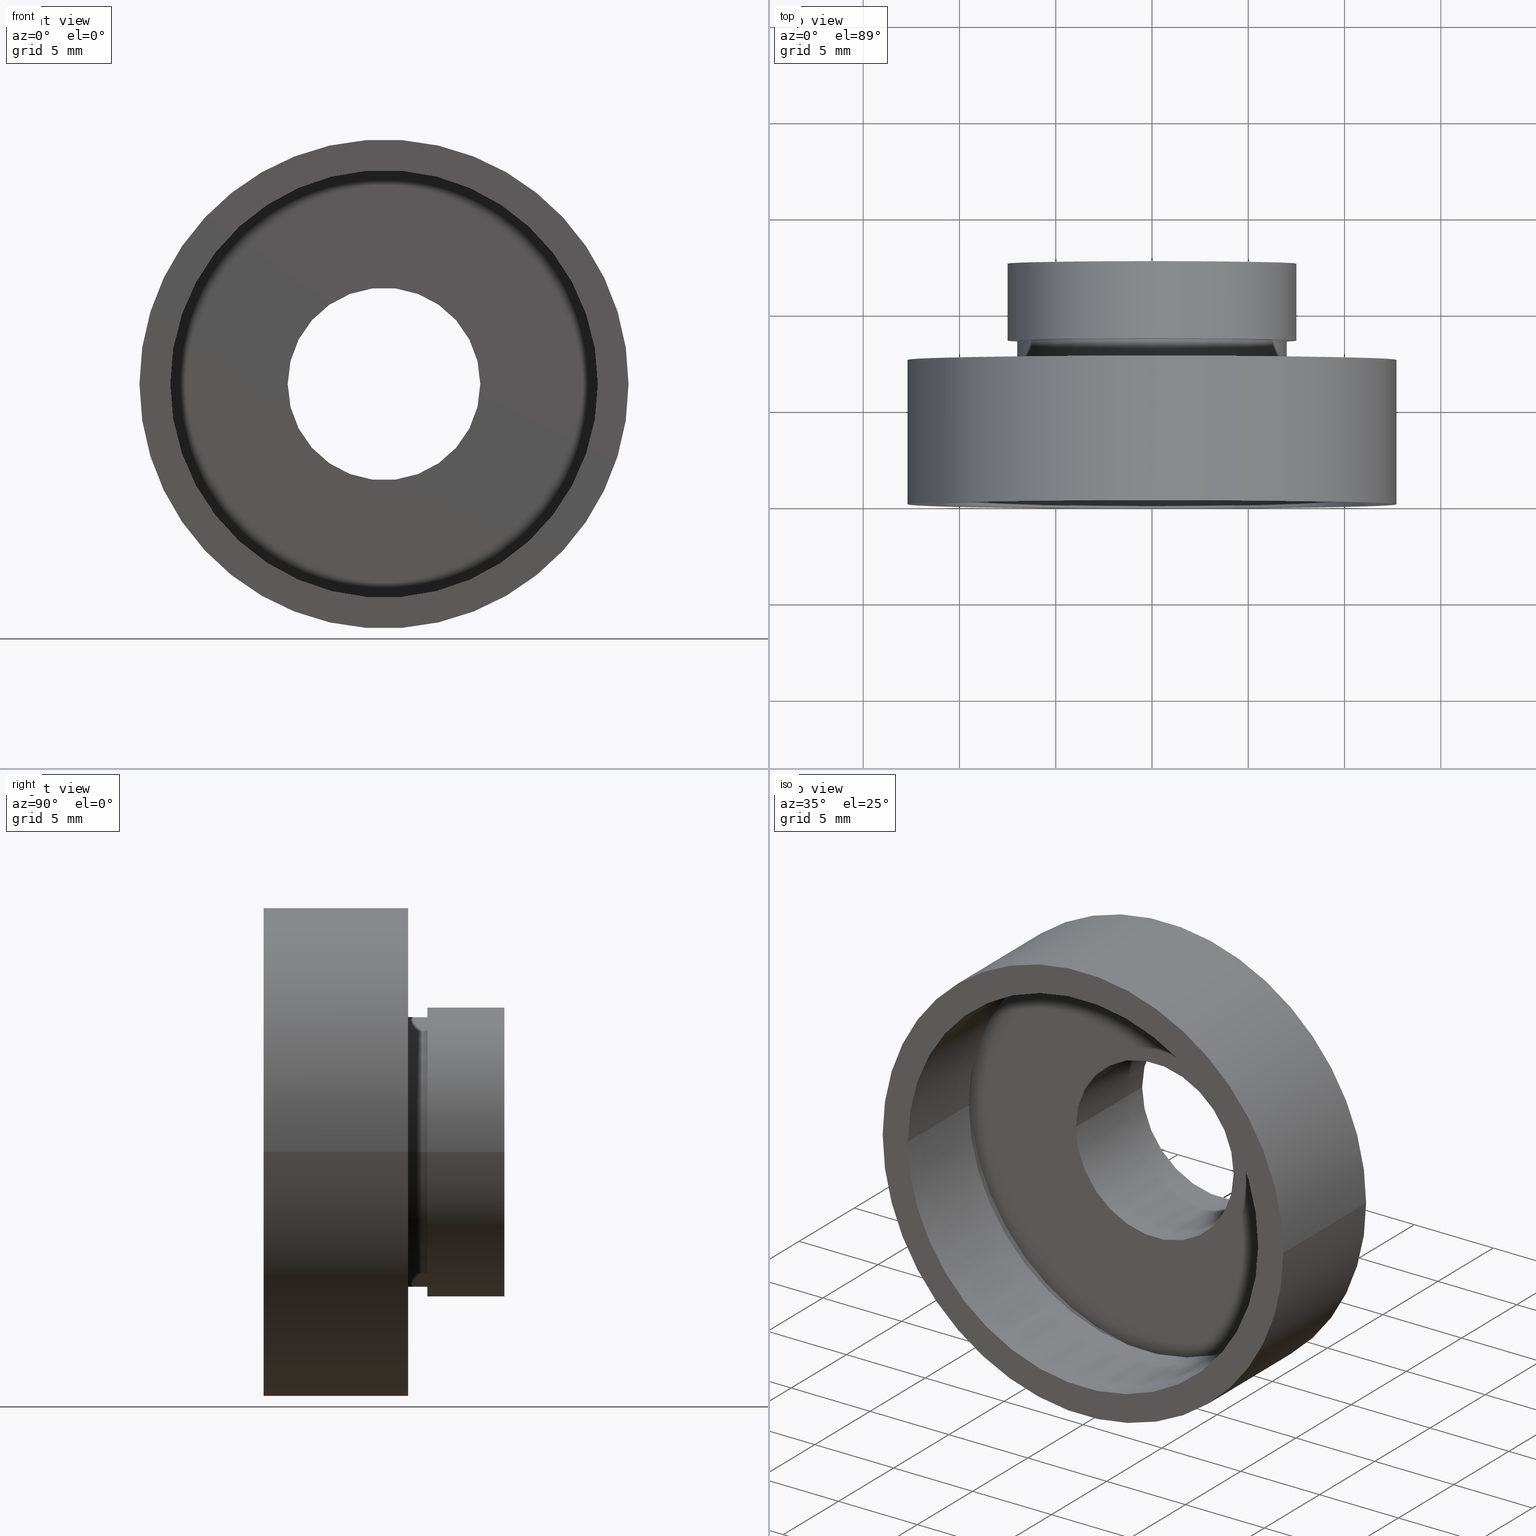
[diagram: canonical four-view strip — front | top / right | iso, engineering-drawing reading convention]
A machine part, canonical four-view strip (front | top / right | iso — engineering-drawing reading convention). The complete STEP part file that produces these views, byte-faithful:
ISO-10303-21;
HEADER;
FILE_DESCRIPTION (( 'STEP AP214' ),
    '1' );
FILE_NAME ('504088.STEP',
    '2019-10-08T08:06:31',
    ( 'user' ),
    ( '΢���й�' ),
    'SwSTEP 2.0',
    'SolidWorks 2016',
    '' );
FILE_SCHEMA (( 'AUTOMOTIVE_DESIGN' ));
ENDSEC;

DATA;
#1 = PRESENTATION_STYLE_ASSIGNMENT (( #459 ) ) ;
#2 = ORIENTED_EDGE ( 'NONE', *, *, #364, .T. ) ;
#3 = DIRECTION ( 'NONE',  ( -1.000000000000000000, -1.365923996832131900E-016, 0.0000000000000000000 ) ) ;
#4 = STYLED_ITEM ( 'NONE', ( #567 ), #190 ) ;
#5 = DIRECTION ( 'NONE',  ( -1.000000000000000000, 0.0000000000000000000, 0.0000000000000000000 ) ) ;
#6 = PRODUCT ( '504088', '504088', '', ( #550 ) ) ;
#7 = AXIS2_PLACEMENT_3D ( 'NONE', #496, #148, #584 ) ;
#8 = SURFACE_STYLE_FILL_AREA ( #345 ) ;
#9 = DIRECTION ( 'NONE',  ( -1.000000000000000000, -2.312964634635743000E-016, 0.0000000000000000000 ) ) ;
#10 = CARTESIAN_POINT ( 'NONE',  ( 1.026991039163387700E-015, 8.499999999999998200, 0.0000000000000000000 ) ) ;
#11 = ADVANCED_FACE ( 'NONE', ( #411 ), #602, .F. ) ;
#12 =( GEOMETRIC_REPRESENTATION_CONTEXT ( 3 ) GLOBAL_UNCERTAINTY_ASSIGNED_CONTEXT ( ( #586 ) ) GLOBAL_UNIT_ASSIGNED_CONTEXT ( ( #436, #320, #198 ) ) REPRESENTATION_CONTEXT ( 'NONE', 'WORKASPACE' ) );
#13 =( LENGTH_UNIT ( ) NAMED_UNIT ( * ) SI_UNIT ( .MILLI., .METRE. ) );
#14 = FACE_OUTER_BOUND ( 'NONE', #283, .T. ) ;
#15 = ADVANCED_FACE ( 'NONE', ( #621 ), #67, .T. ) ;
#16 = DIRECTION ( 'NONE',  ( -1.000000000000000000, -1.365923996832131900E-016, 0.0000000000000000000 ) ) ;
#17 = DIRECTION ( 'NONE',  ( -1.224646799147351000E-016, 1.000000000000000000, -0.0000000000000000000 ) ) ;
#18 = UNCERTAINTY_MEASURE_WITH_UNIT (LENGTH_MEASURE( 1.000000000000000100E-005 ), #499, 'distance_accuracy_value', 'NONE');
#19 = PRODUCT_DEFINITION_FORMATION_WITH_SPECIFIED_SOURCE ( '�κ�', '', #6, .NOT_KNOWN. ) ;
#20 = ORIENTED_EDGE ( 'NONE', *, *, #594, .F. ) ;
#21 = VECTOR ( 'NONE', #497, 1000.000000000000000 ) ;
#22 = AXIS2_PLACEMENT_3D ( 'NONE', #533, #590, #292 ) ;
#23 = DIRECTION ( 'NONE',  ( -1.224646799147351000E-016, 1.000000000000000000, 0.0000000000000000000 ) ) ;
#24 = ADVANCED_FACE ( 'NONE', ( #512 ), #302, .F. ) ;
#25 = PLANE ( 'NONE',  #171 ) ;
#26 = EDGE_LOOP ( 'NONE', ( #48, #78 ) ) ;
#27 = ORIENTED_EDGE ( 'NONE', *, *, #395, .T. ) ;
#28 = LINE ( 'NONE', #529, #162 ) ;
#29 = SURFACE_SIDE_STYLE ('',( #610 ) ) ;
#30 = ORIENTED_EDGE ( 'NONE', *, *, #561, .T. ) ;
#31 = CARTESIAN_POINT ( 'NONE',  ( 1.394385078907593200E-015, 5.499999999999996400, 0.0000000000000000000 ) ) ;
#32 = ORIENTED_EDGE ( 'NONE', *, *, #130, .F. ) ;
#33 = AXIS2_PLACEMENT_3D ( 'NONE', #114, #297, #69 ) ;
#34 = ORIENTED_EDGE ( 'NONE', *, *, #553, .T. ) ;
#35 = VECTOR ( 'NONE', #174, 1000.000000000000000 ) ;
#36 =( GEOMETRIC_REPRESENTATION_CONTEXT ( 3 ) GLOBAL_UNCERTAINTY_ASSIGNED_CONTEXT ( ( #427 ) ) GLOBAL_UNIT_ASSIGNED_CONTEXT ( ( #87, #615, #261 ) ) REPRESENTATION_CONTEXT ( 'NONE', 'WORKASPACE' ) );
#37 = SURFACE_STYLE_USAGE ( .BOTH. , #29 ) ;
#38 = VECTOR ( 'NONE', #501, 1000.000000000000000 ) ;
#39 = EDGE_LOOP ( 'NONE', ( #66, #249 ) ) ;
#40 = ORIENTED_EDGE ( 'NONE', *, *, #592, .F. ) ;
#41 = PLANE ( 'NONE',  #222 ) ;
#42 = ORIENTED_EDGE ( 'NONE', *, *, #574, .T. ) ;
#43 = CARTESIAN_POINT ( 'NONE',  ( 5.000000000000000900, 16.88601823708207700, 6.123233995736767300E-016 ) ) ;
#44 = PRESENTATION_LAYER_ASSIGNMENT (  '', '', ( #71 ) ) ;
#45 = CARTESIAN_POINT ( 'NONE',  ( 2.067940818438636100E-015, 0.0000000000000000000, 0.0000000000000000000 ) ) ;
#46 = DIRECTION ( 'NONE',  ( -1.224646799147351000E-016, 1.000000000000000000, -0.0000000000000000000 ) ) ;
#47 = CARTESIAN_POINT ( 'NONE',  ( 1.394385078907593200E-015, 5.499999999999996400, 0.0000000000000000000 ) ) ;
#48 = ORIENTED_EDGE ( 'NONE', *, *, #187, .T. ) ;
#49 = DIRECTION ( 'NONE',  ( 1.224646799147351000E-016, -1.000000000000000000, 0.0000000000000000000 ) ) ;
#50 = ORIENTED_EDGE ( 'NONE', *, *, #59, .T. ) ;
#51 = CARTESIAN_POINT ( 'NONE',  ( 5.000000000000001800, 6.500000000000000000, 6.123233995736767300E-016 ) ) ;
#52 = PRODUCT_DEFINITION ( 'δ֪', '', #19, #421 ) ;
#53 = CIRCLE ( 'NONE', #141, 7.500000000000000000 ) ;
#54 = FILL_AREA_STYLE ('',( #201 ) ) ;
#55 = DIRECTION ( 'NONE',  ( -1.000000000000000000, -1.482669637587014800E-016, 0.0000000000000000000 ) ) ;
#56 = CARTESIAN_POINT ( 'NONE',  ( -5.000000000000000000, 12.50000000000000000, 0.0000000000000000000 ) ) ;
#57 = CYLINDRICAL_SURFACE ( 'NONE', #415, 11.69999999999999900 ) ;
#58 = DIRECTION ( 'NONE',  ( -1.000000000000000000, -2.312964634635743000E-016, 0.0000000000000000000 ) ) ;
#59 = EDGE_CURVE ( 'NONE', #60, #207, #167, .T. ) ;
#60 = VERTEX_POINT ( 'NONE', #355 ) ;
#61 = EDGE_LOOP ( 'NONE', ( #243, #248, #272, #309 ) ) ;
#62 = AXIS2_PLACEMENT_3D ( 'NONE', #518, #226, #333 ) ;
#63 = MECHANICAL_DESIGN_GEOMETRIC_PRESENTATION_REPRESENTATION (  '', ( #4 ), #12 ) ;
#64 = DIRECTION ( 'NONE',  ( -1.000000000000000000, 0.0000000000000000000, 0.0000000000000000000 ) ) ;
#65 = UNCERTAINTY_MEASURE_WITH_UNIT (LENGTH_MEASURE( 1.000000000000000100E-005 ), #443, 'distance_accuracy_value', 'NONE');
#66 = ORIENTED_EDGE ( 'NONE', *, *, #456, .F. ) ;
#67 = CYLINDRICAL_SURFACE ( 'NONE', #347, 7.500000000000000000 ) ;
#68 = CARTESIAN_POINT ( 'NONE',  ( 11.70000000000000100, 5.499999999999998200, 1.432836755002403100E-015 ) ) ;
#69 = DIRECTION ( 'NONE',  ( -1.000000000000000000, -1.239088197126290800E-016, 0.0000000000000000000 ) ) ;
#70 = FILL_AREA_STYLE_COLOUR ( '', #338 ) ;
#71 = STYLED_ITEM ( 'NONE', ( #439 ), #274 ) ;
#72 = CARTESIAN_POINT ( 'NONE',  ( 11.10000000000000000, 16.88601823708207700, 1.359357947053562200E-015 ) ) ;
#73 = CARTESIAN_POINT ( 'NONE',  ( 7.500000000000000000, 16.88601823708207700, 9.184850993605147900E-016 ) ) ;
#74 = SURFACE_SIDE_STYLE ('',( #133 ) ) ;
#75 = CARTESIAN_POINT ( 'NONE',  ( -6.999999999999999100, 8.500000000000000000, 0.0000000000000000000 ) ) ;
#76 = DIRECTION ( 'NONE',  ( -1.224646799147351000E-016, 1.000000000000000000, -0.0000000000000000000 ) ) ;
#77 = ORIENTED_EDGE ( 'NONE', *, *, #569, .F. ) ;
#78 = ORIENTED_EDGE ( 'NONE', *, *, #623, .T. ) ;
#79 = ORIENTED_EDGE ( 'NONE', *, *, #612, .T. ) ;
#80 = ORIENTED_EDGE ( 'NONE', *, *, #127, .T. ) ;
#81 = SURFACE_SIDE_STYLE ('',( #408 ) ) ;
#82 = CARTESIAN_POINT ( 'NONE',  ( 7.500000000000000900, 12.49999999999999800, 9.184850993605147900E-016 ) ) ;
#83 =( GEOMETRIC_REPRESENTATION_CONTEXT ( 3 ) GLOBAL_UNCERTAINTY_ASSIGNED_CONTEXT ( ( #65 ) ) GLOBAL_UNIT_ASSIGNED_CONTEXT ( ( #443, #387, #344 ) ) REPRESENTATION_CONTEXT ( 'NONE', 'WORKASPACE' ) );
#84 = ORIENTED_EDGE ( 'NONE', *, *, #234, .F. ) ;
#85 = ORIENTED_EDGE ( 'NONE', *, *, #605, .T. ) ;
#86 = CIRCLE ( 'NONE', #377, 12.69999999999999800 ) ;
#87 =( LENGTH_UNIT ( ) NAMED_UNIT ( * ) SI_UNIT ( .MILLI., .METRE. ) );
#88 = PRESENTATION_LAYER_ASSIGNMENT (  '', '', ( #146 ) ) ;
#89 = PRESENTATION_STYLE_ASSIGNMENT (( #105 ) ) ;
#90 = DIRECTION ( 'NONE',  ( -1.224646799147351000E-016, 1.000000000000000000, -0.0000000000000000000 ) ) ;
#91 = EDGE_LOOP ( 'NONE', ( #135, #40 ) ) ;
#92 = DIRECTION ( 'NONE',  ( -1.224646799147351000E-016, 1.000000000000000000, -0.0000000000000000000 ) ) ;
#93 = EDGE_CURVE ( 'NONE', #327, #435, #160, .T. ) ;
#94 = EDGE_LOOP ( 'NONE', ( #84, #454, #80, #445 ) ) ;
#95 = CARTESIAN_POINT ( 'NONE',  ( 7.500000000000000900, 8.500000000000000000, 0.0000000000000000000 ) ) ;
#96 = DIRECTION ( 'NONE',  ( 1.224646799147351000E-016, -1.000000000000000000, 0.0000000000000000000 ) ) ;
#97 = DIRECTION ( 'NONE',  ( -1.224646799147351000E-016, 1.000000000000000000, -0.0000000000000000000 ) ) ;
#98 = FILL_AREA_STYLE_COLOUR ( '', #238 ) ;
#99 = LINE ( 'NONE', #468, #537 ) ;
#100 = CARTESIAN_POINT ( 'NONE',  ( 1.026991039163387500E-015, 8.500000000000000000, 0.0000000000000000000 ) ) ;
#101 = FACE_OUTER_BOUND ( 'NONE', #287, .T. ) ;
#102 = MECHANICAL_DESIGN_GEOMETRIC_PRESENTATION_REPRESENTATION (  '', ( #146 ), #36 ) ;
#103 = CARTESIAN_POINT ( 'NONE',  ( 7.500000000000000900, 8.500000000000000000, 9.184850993605147900E-016 ) ) ;
#104 = CYLINDRICAL_SURFACE ( 'NONE', #230, 5.000000000000000900 ) ;
#105 = SURFACE_STYLE_USAGE ( .BOTH. , #452 ) ;
#106 = CIRCLE ( 'NONE', #62, 11.69999999999999900 ) ;
#107 = CARTESIAN_POINT ( 'NONE',  ( -11.69999999999999800, 5.499999999999994700, 0.0000000000000000000 ) ) ;
#108 =( NAMED_UNIT ( * ) PLANE_ANGLE_UNIT ( ) SI_UNIT ( $, .RADIAN. ) );
#109 = AXIS2_PLACEMENT_3D ( 'NONE', #526, #303, #271 ) ;
#110 = DIRECTION ( 'NONE',  ( 1.000000000000000000, 1.224646799147351000E-016, 0.0000000000000000000 ) ) ;
#111 = EDGE_LOOP ( 'NONE', ( #214, #322 ) ) ;
#112 = CARTESIAN_POINT ( 'NONE',  ( 5.371323195044471300E-016, 12.50000000000000000, 0.0000000000000000000 ) ) ;
#113 = EDGE_LOOP ( 'NONE', ( #142, #453, #121, #233 ) ) ;
#114 = CARTESIAN_POINT ( 'NONE',  ( 1.149455719078122500E-015, 7.500000000000000000, 0.0000000000000000000 ) ) ;
#115 = ORIENTED_EDGE ( 'NONE', *, *, #210, .F. ) ;
#116 = AXIS2_PLACEMENT_3D ( 'NONE', #558, #600, #464 ) ;
#117 = FACE_BOUND ( 'NONE', #310, .T. ) ;
#118 = CYLINDRICAL_SURFACE ( 'NONE', #548, 12.69999999999999900 ) ;
#119 = DIRECTION ( 'NONE',  ( 1.000000000000000000, 1.224646799147351000E-016, 0.0000000000000000000 ) ) ;
#120 = PRESENTATION_LAYER_ASSIGNMENT (  '', '', ( #509 ) ) ;
#121 = ORIENTED_EDGE ( 'NONE', *, *, #307, .T. ) ;
#122 = DIRECTION ( 'NONE',  ( -1.224646799147351000E-016, 1.000000000000000000, -0.0000000000000000000 ) ) ;
#123 = CARTESIAN_POINT ( 'NONE',  ( 7.000000000000000900, 7.500000000000000000, 0.0000000000000000000 ) ) ;
#124 = DIRECTION ( 'NONE',  ( -1.000000000000000000, -1.482669637587014800E-016, 0.0000000000000000000 ) ) ;
#125 = PRESENTATION_STYLE_ASSIGNMENT (( #242 ) ) ;
#126 = VERTEX_POINT ( 'NONE', #613 ) ;
#127 = EDGE_CURVE ( 'NONE', #280, #350, #136, .T. ) ;
#128 = CARTESIAN_POINT ( 'NONE',  ( 11.10000000000000100, 1.359357947053559600E-015, 1.359357947053562200E-015 ) ) ;
#129 = PRESENTATION_STYLE_ASSIGNMENT (( #37 ) ) ;
#130 = EDGE_CURVE ( 'NONE', #240, #326, #273, .T. ) ;
#131 = DIRECTION ( 'NONE',  ( -1.000000000000000000, -1.224646799147351000E-016, 0.0000000000000000000 ) ) ;
#132 =( NAMED_UNIT ( * ) PLANE_ANGLE_UNIT ( ) SI_UNIT ( $, .RADIAN. ) );
#133 = SURFACE_STYLE_FILL_AREA ( #245 ) ;
#134 = CARTESIAN_POINT ( 'NONE',  ( 7.000000000000000900, 7.500000000000000900, 8.572527594031473200E-016 ) ) ;
#135 = ORIENTED_EDGE ( 'NONE', *, *, #612, .F. ) ;
#136 = LINE ( 'NONE', #263, #513 ) ;
#137 = CIRCLE ( 'NONE', #22, 12.70000000000000100 ) ;
#138 = DIRECTION ( 'NONE',  ( -1.224646799147351000E-016, 1.000000000000000000, 0.0000000000000000000 ) ) ;
#139 = UNCERTAINTY_MEASURE_WITH_UNIT (LENGTH_MEASURE( 1.000000000000000100E-005 ), #524, 'distance_accuracy_value', 'NONE');
#140 = DIRECTION ( 'NONE',  ( -1.000000000000000000, -2.312964634635743000E-016, 0.0000000000000000000 ) ) ;
#141 = AXIS2_PLACEMENT_3D ( 'NONE', #288, #259, #140 ) ;
#142 = ORIENTED_EDGE ( 'NONE', *, *, #551, .F. ) ;
#143 = DIRECTION ( 'NONE',  ( -1.000000000000000000, -1.482669637587014800E-016, 0.0000000000000000000 ) ) ;
#144 = CARTESIAN_POINT ( 'NONE',  ( 7.000000000000000000, 16.88601823708207700, 8.572527594031473200E-016 ) ) ;
#145 = CARTESIAN_POINT ( 'NONE',  ( 11.10000000000000100, 5.499999999999999100, 0.0000000000000000000 ) ) ;
#146 = STYLED_ITEM ( 'NONE', ( #389 ), #544 ) ;
#147 = DIRECTION ( 'NONE',  ( -1.224646799147351000E-016, 1.000000000000000000, -0.0000000000000000000 ) ) ;
#148 = DIRECTION ( 'NONE',  ( -1.224646799147351000E-016, 1.000000000000000000, -0.0000000000000000000 ) ) ;
#149 = COLOUR_RGB ( '',1.000000000000000000, 1.000000000000000000, 1.000000000000000000 ) ;
#150 = CARTESIAN_POINT ( 'NONE',  ( -12.69999999999999900, -1.555301434917135900E-015, 0.0000000000000000000 ) ) ;
#151 = EDGE_CURVE ( 'NONE', #202, #191, #503, .T. ) ;
#152 = DIRECTION ( 'NONE',  ( -1.224646799147351000E-016, 1.000000000000000000, -0.0000000000000000000 ) ) ;
#153 = CARTESIAN_POINT ( 'NONE',  ( 7.000000000000000900, 8.500000000000000000, 8.572527594031473200E-016 ) ) ;
#154 = CARTESIAN_POINT ( 'NONE',  ( -5.000000000000000900, 16.88601823708207700, 0.0000000000000000000 ) ) ;
#155 = FACE_OUTER_BOUND ( 'NONE', #231, .T. ) ;
#156 =( NAMED_UNIT ( * ) SI_UNIT ( $, .STERADIAN. ) SOLID_ANGLE_UNIT ( ) );
#157 = SURFACE_STYLE_USAGE ( .BOTH. , #624 ) ;
#158 = ORIENTED_EDGE ( 'NONE', *, *, #539, .T. ) ;
#159 = AXIS2_PLACEMENT_3D ( 'NONE', #289, #317, #419 ) ;
#160 = CIRCLE ( 'NONE', #465, 12.70000000000000100 ) ;
#161 = EDGE_LOOP ( 'NONE', ( #328, #348, #241, #374 ) ) ;
#162 = VECTOR ( 'NONE', #446, 1000.000000000000000 ) ;
#163 = FACE_OUTER_BOUND ( 'NONE', #334, .T. ) ;
#164 = ADVANCED_FACE ( 'NONE', ( #515, #500 ), #351, .F. ) ;
#165 = DIRECTION ( 'NONE',  ( -1.224646799147351000E-016, 1.000000000000000000, -0.0000000000000000000 ) ) ;
#166 = STYLED_ITEM ( 'NONE', ( #125 ), #11 ) ;
#167 = CIRCLE ( 'NONE', #396, 11.69999999999999900 ) ;
#168 = ORIENTED_EDGE ( 'NONE', *, *, #599, .T. ) ;
#169 = DIRECTION ( 'NONE',  ( -1.000000000000000000, -1.239088197126290800E-016, 0.0000000000000000000 ) ) ;
#170 = FACE_OUTER_BOUND ( 'NONE', #294, .T. ) ;
#171 = AXIS2_PLACEMENT_3D ( 'NONE', #219, #268, #493 ) ;
#172 = CLOSED_SHELL ( 'NONE', ( #492, #572, #15, #598, #217, #274, #414, #517, #239, #24, #463, #11, #614, #576, #311, #227, #164, #400 ) ) ;
#173 = ORIENTED_EDGE ( 'NONE', *, *, #594, .T. ) ;
#174 = DIRECTION ( 'NONE',  ( -1.224646799147351000E-016, 1.000000000000000000, -0.0000000000000000000 ) ) ;
#175 = EDGE_CURVE ( 'NONE', #536, #240, #99, .T. ) ;
#176 = CARTESIAN_POINT ( 'NONE',  ( 0.0000000000000000000, 16.88601823708207700, 0.0000000000000000000 ) ) ;
#177 = COLOUR_RGB ( '',1.000000000000000000, 1.000000000000000000, 1.000000000000000000 ) ;
#178 = DIRECTION ( 'NONE',  ( -1.000000000000000000, 0.0000000000000000000, 0.0000000000000000000 ) ) ;
#179 = DIRECTION ( 'NONE',  ( -1.224646799147351000E-016, 1.000000000000000000, -0.0000000000000000000 ) ) ;
#180 = CARTESIAN_POINT ( 'NONE',  ( -7.499999999999999100, 8.499999999999996400, 0.0000000000000000000 ) ) ;
#181 = FILL_AREA_STYLE_COLOUR ( '', #177 ) ;
#182 =( GEOMETRIC_REPRESENTATION_CONTEXT ( 3 ) GLOBAL_UNCERTAINTY_ASSIGNED_CONTEXT ( ( #18 ) ) GLOBAL_UNIT_ASSIGNED_CONTEXT ( ( #499, #132, #156 ) ) REPRESENTATION_CONTEXT ( 'NONE', 'WORKASPACE' ) );
#183 = FILL_AREA_STYLE_COLOUR ( '', #528 ) ;
#184 = ORIENTED_EDGE ( 'NONE', *, *, #93, .F. ) ;
#185 = VERTEX_POINT ( 'NONE', #51 ) ;
#186 = VERTEX_POINT ( 'NONE', #56 ) ;
#187 = EDGE_CURVE ( 'NONE', #350, #525, #565, .T. ) ;
#188 = LINE ( 'NONE', #144, #369 ) ;
#189 = CARTESIAN_POINT ( 'NONE',  ( -11.09999999999999800, 5.499999999999994700, 0.0000000000000000000 ) ) ;
#190 = MANIFOLD_SOLID_BREP ( '��ת1', #172 ) ;
#191 = VERTEX_POINT ( 'NONE', #68 ) ;
#192 = DIRECTION ( 'NONE',  ( -1.224646799147351000E-016, 1.000000000000000000, -0.0000000000000000000 ) ) ;
#193 = ORIENTED_EDGE ( 'NONE', *, *, #307, .F. ) ;
#194 = FILL_AREA_STYLE_COLOUR ( '', #149 ) ;
#195 =( LENGTH_UNIT ( ) NAMED_UNIT ( * ) SI_UNIT ( .MILLI., .METRE. ) );
#196 = CIRCLE ( 'NONE', #341, 7.000000000000000000 ) ;
#197 = DIRECTION ( 'NONE',  ( -1.000000000000000000, 0.0000000000000000000, 0.0000000000000000000 ) ) ;
#198 =( NAMED_UNIT ( * ) SI_UNIT ( $, .STERADIAN. ) SOLID_ANGLE_UNIT ( ) );
#199 = PRESENTATION_LAYER_ASSIGNMENT (  '', '', ( #166 ) ) ;
#200 = VERTEX_POINT ( 'NONE', #486 ) ;
#201 = FILL_AREA_STYLE_COLOUR ( '', #583 ) ;
#202 = VERTEX_POINT ( 'NONE', #107 ) ;
#203 = DIRECTION ( 'NONE',  ( -1.000000000000000000, -2.312964634635743000E-016, 0.0000000000000000000 ) ) ;
#204 =( NAMED_UNIT ( * ) SI_UNIT ( $, .STERADIAN. ) SOLID_ANGLE_UNIT ( ) );
#205 = CARTESIAN_POINT ( 'NONE',  ( -7.500000000000000000, 16.88601823708207700, 0.0000000000000000000 ) ) ;
#206 = CARTESIAN_POINT ( 'NONE',  ( 1.149455719078122500E-015, 7.500000000000000000, 0.0000000000000000000 ) ) ;
#207 = VERTEX_POINT ( 'NONE', #469 ) ;
#208 = EDGE_LOOP ( 'NONE', ( #267, #458, #295, #441 ) ) ;
#209 = DIRECTION ( 'NONE',  ( -1.000000000000000000, 0.0000000000000000000, 0.0000000000000000000 ) ) ;
#210 = EDGE_CURVE ( 'NONE', #535, #280, #487, .T. ) ;
#211 = DIRECTION ( 'NONE',  ( -1.224646799147351000E-016, 1.000000000000000000, -0.0000000000000000000 ) ) ;
#212 = DIRECTION ( 'NONE',  ( -1.000000000000000000, 0.0000000000000000000, 0.0000000000000000000 ) ) ;
#213 = APPLICATION_PROTOCOL_DEFINITION ( 'draft international standard', 'automotive_design', 1998, #450 ) ;
#214 = ORIENTED_EDGE ( 'NONE', *, *, #59, .F. ) ;
#215 =( NAMED_UNIT ( * ) PLANE_ANGLE_UNIT ( ) SI_UNIT ( $, .RADIAN. ) );
#216 = AXIS2_PLACEMENT_3D ( 'NONE', #538, #566, #564 ) ;
#217 = ADVANCED_FACE ( 'NONE', ( #275 ), #57, .F. ) ;
#218 = EDGE_LOOP ( 'NONE', ( #388, #416, #523, #425 ) ) ;
#219 = CARTESIAN_POINT ( 'NONE',  ( 5.000000000000001800, 12.50000000000000000, 0.0000000000000000000 ) ) ;
#220 = ORIENTED_EDGE ( 'NONE', *, *, #571, .F. ) ;
#221 = VECTOR ( 'NONE', #504, 1000.000000000000000 ) ;
#222 = AXIS2_PLACEMENT_3D ( 'NONE', #145, #96, #119 ) ;
#223 = CARTESIAN_POINT ( 'NONE',  ( -11.09999999999999800, -1.359357947053559600E-015, 0.0000000000000000000 ) ) ;
#224 = DIRECTION ( 'NONE',  ( -1.000000000000000000, 0.0000000000000000000, 0.0000000000000000000 ) ) ;
#225 = EDGE_LOOP ( 'NONE', ( #77, #401, #2, #50 ) ) ;
#226 = DIRECTION ( 'NONE',  ( -1.224646799147351000E-016, 1.000000000000000000, -0.0000000000000000000 ) ) ;
#227 = ADVANCED_FACE ( 'NONE', ( #473 ), #428, .T. ) ;
#228 = CARTESIAN_POINT ( 'NONE',  ( 0.0000000000000000000, 16.88601823708207700, 0.0000000000000000000 ) ) ;
#229 = SURFACE_STYLE_FILL_AREA ( #54 ) ;
#230 = AXIS2_PLACEMENT_3D ( 'NONE', #476, #211, #224 ) ;
#231 = EDGE_LOOP ( 'NONE', ( #418, #281, #460, #193 ) ) ;
#232 = CARTESIAN_POINT ( 'NONE',  ( -12.69999999999999900, 16.88601823708207700, 0.0000000000000000000 ) ) ;
#233 = ORIENTED_EDGE ( 'NONE', *, *, #582, .F. ) ;
#234 = EDGE_CURVE ( 'NONE', #535, #525, #188, .T. ) ;
#235 = CIRCLE ( 'NONE', #216, 7.000000000000000000 ) ;
#236 = DIRECTION ( 'NONE',  ( -1.224646799147351000E-016, 1.000000000000000000, -0.0000000000000000000 ) ) ;
#237 = FACE_OUTER_BOUND ( 'NONE', #386, .T. ) ;
#238 = COLOUR_RGB ( '',1.000000000000000000, 1.000000000000000000, 1.000000000000000000 ) ;
#239 = ADVANCED_FACE ( 'NONE', ( #117, #14 ), #41, .F. ) ;
#240 = VERTEX_POINT ( 'NONE', #189 ) ;
#241 = ORIENTED_EDGE ( 'NONE', *, *, #395, .F. ) ;
#242 = SURFACE_STYLE_USAGE ( .BOTH. , #74 ) ;
#243 = ORIENTED_EDGE ( 'NONE', *, *, #611, .F. ) ;
#244 = AXIS2_PLACEMENT_3D ( 'NONE', #112, #147, #277 ) ;
#245 = FILL_AREA_STYLE ('',( #194 ) ) ;
#246 =( GEOMETRIC_REPRESENTATION_CONTEXT ( 3 ) GLOBAL_UNCERTAINTY_ASSIGNED_CONTEXT ( ( #308 ) ) GLOBAL_UNIT_ASSIGNED_CONTEXT ( ( #617, #215, #204 ) ) REPRESENTATION_CONTEXT ( 'NONE', 'WORKASPACE' ) );
#247 = ORIENTED_EDGE ( 'NONE', *, *, #372, .F. ) ;
#248 = ORIENTED_EDGE ( 'NONE', *, *, #478, .T. ) ;
#249 = ORIENTED_EDGE ( 'NONE', *, *, #574, .F. ) ;
#250 = FILL_AREA_STYLE_COLOUR ( '', #616 ) ;
#251 = CARTESIAN_POINT ( 'NONE',  ( 0.0000000000000000000, 16.88601823708207700, 0.0000000000000000000 ) ) ;
#252 = AXIS2_PLACEMENT_3D ( 'NONE', #379, #76, #530 ) ;
#253 = DIRECTION ( 'NONE',  ( -1.000000000000000000, -1.224646799147351000E-016, 0.0000000000000000000 ) ) ;
#254 = FILL_AREA_STYLE_COLOUR ( '', #494 ) ;
#255 =( NAMED_UNIT ( * ) PLANE_ANGLE_UNIT ( ) SI_UNIT ( $, .RADIAN. ) );
#256 =( NAMED_UNIT ( * ) SI_UNIT ( $, .STERADIAN. ) SOLID_ANGLE_UNIT ( ) );
#257 = APPLICATION_CONTEXT ( 'automotive_design' ) ;
#258 = EDGE_CURVE ( 'NONE', #444, #185, #430, .T. ) ;
#259 = DIRECTION ( 'NONE',  ( -1.224646799147351000E-016, 1.000000000000000000, -0.0000000000000000000 ) ) ;
#260 = CARTESIAN_POINT ( 'NONE',  ( 11.10000000000000100, 5.499999999999998200, 1.359357947053562200E-015 ) ) ;
#261 =( NAMED_UNIT ( * ) SI_UNIT ( $, .STERADIAN. ) SOLID_ANGLE_UNIT ( ) );
#262 = UNCERTAINTY_MEASURE_WITH_UNIT (LENGTH_MEASURE( 1.000000000000000100E-005 ), #13, 'distance_accuracy_value', 'NONE');
#263 = CARTESIAN_POINT ( 'NONE',  ( -7.000000000000000000, 16.88601823708207700, 0.0000000000000000000 ) ) ;
#264 =( NAMED_UNIT ( * ) SI_UNIT ( $, .STERADIAN. ) SOLID_ANGLE_UNIT ( ) );
#265 = AXIS2_PLACEMENT_3D ( 'NONE', #438, #620, #58 ) ;
#266 = VERTEX_POINT ( 'NONE', #82 ) ;
#267 = ORIENTED_EDGE ( 'NONE', *, *, #491, .F. ) ;
#268 = DIRECTION ( 'NONE',  ( 1.224646799147351000E-016, -1.000000000000000000, 0.0000000000000000000 ) ) ;
#269 = LINE ( 'NONE', #72, #21 ) ;
#270 = AXIS2_PLACEMENT_3D ( 'NONE', #251, #481, #474 ) ;
#271 = DIRECTION ( 'NONE',  ( -1.000000000000000000, 0.0000000000000000000, 0.0000000000000000000 ) ) ;
#272 = ORIENTED_EDGE ( 'NONE', *, *, #532, .T. ) ;
#273 = CIRCLE ( 'NONE', #7, 11.10000000000000000 ) ;
#274 = ADVANCED_FACE ( 'NONE', ( #335 ), #505, .F. ) ;
#275 = FACE_OUTER_BOUND ( 'NONE', #208, .T. ) ;
#276 = MECHANICAL_DESIGN_GEOMETRIC_PRESENTATION_REPRESENTATION (  '', ( #296 ), #286 ) ;
#277 = DIRECTION ( 'NONE',  ( -1.000000000000000000, 0.0000000000000000000, 0.0000000000000000000 ) ) ;
#278 = EDGE_CURVE ( 'NONE', #185, #200, #597, .T. ) ;
#279 = SURFACE_SIDE_STYLE ('',( #479 ) ) ;
#280 = VERTEX_POINT ( 'NONE', #519 ) ;
#281 = ORIENTED_EDGE ( 'NONE', *, *, #551, .T. ) ;
#282 = AXIS2_PLACEMENT_3D ( 'NONE', #47, #122, #124 ) ;
#283 = EDGE_LOOP ( 'NONE', ( #608, #543 ) ) ;
#284 = FILL_AREA_STYLE ('',( #98 ) ) ;
#285 = DIRECTION ( 'NONE',  ( -1.224646799147351000E-016, 1.000000000000000000, -0.0000000000000000000 ) ) ;
#286 =( GEOMETRIC_REPRESENTATION_CONTEXT ( 3 ) GLOBAL_UNCERTAINTY_ASSIGNED_CONTEXT ( ( #139 ) ) GLOBAL_UNIT_ASSIGNED_CONTEXT ( ( #524, #255, #604 ) ) REPRESENTATION_CONTEXT ( 'NONE', 'WORKASPACE' ) );
#287 = EDGE_LOOP ( 'NONE', ( #402, #42, #34, #339 ) ) ;
#288 = CARTESIAN_POINT ( 'NONE',  ( 5.371323195044473300E-016, 12.49999999999999600, 0.0000000000000000000 ) ) ;
#289 = CARTESIAN_POINT ( 'NONE',  ( 0.0000000000000000000, 0.0000000000000000000, 0.0000000000000000000 ) ) ;
#290 = MECHANICAL_DESIGN_GEOMETRIC_PRESENTATION_REPRESENTATION (  '', ( #166 ), #246 ) ;
#291 = SURFACE_STYLE_USAGE ( .BOTH. , #480 ) ;
#292 = DIRECTION ( 'NONE',  ( -1.000000000000000000, -1.224646799147351000E-016, 0.0000000000000000000 ) ) ;
#293 = CARTESIAN_POINT ( 'NONE',  ( 5.371323195044471300E-016, 12.50000000000000000, 0.0000000000000000000 ) ) ;
#294 = EDGE_LOOP ( 'NONE', ( #247, #184 ) ) ;
#295 = ORIENTED_EDGE ( 'NONE', *, *, #562, .T. ) ;
#296 = STYLED_ITEM ( 'NONE', ( #129 ), #598 ) ;
#297 = DIRECTION ( 'NONE',  ( -1.224646799147351000E-016, 1.000000000000000000, -0.0000000000000000000 ) ) ;
#298 =( NAMED_UNIT ( * ) PLANE_ANGLE_UNIT ( ) SI_UNIT ( $, .RADIAN. ) );
#299 = FILL_AREA_STYLE ('',( #70 ) ) ;
#300 = AXIS2_PLACEMENT_3D ( 'NONE', #123, #49, #110 ) ;
#301 = ORIENTED_EDGE ( 'NONE', *, *, #611, .T. ) ;
#302 = CYLINDRICAL_SURFACE ( 'NONE', #431, 11.69999999999999900 ) ;
#303 = DIRECTION ( 'NONE',  ( -1.224646799147351000E-016, 1.000000000000000000, -0.0000000000000000000 ) ) ;
#304 = EDGE_LOOP ( 'NONE', ( #545, #30 ) ) ;
#305 =( NAMED_UNIT ( * ) SI_UNIT ( $, .STERADIAN. ) SOLID_ANGLE_UNIT ( ) );
#306 = CARTESIAN_POINT ( 'NONE',  ( 1.149455719078122700E-015, 7.499999999999998200, 0.0000000000000000000 ) ) ;
#307 = EDGE_CURVE ( 'NONE', #435, #126, #475, .T. ) ;
#308 = UNCERTAINTY_MEASURE_WITH_UNIT (LENGTH_MEASURE( 1.000000000000000100E-005 ), #617, 'distance_accuracy_value', 'NONE');
#309 = ORIENTED_EDGE ( 'NONE', *, *, #175, .F. ) ;
#310 = EDGE_LOOP ( 'NONE', ( #32, #380 ) ) ;
#311 = ADVANCED_FACE ( 'NONE', ( #573, #531 ), #397, .F. ) ;
#312 =( GEOMETRIC_REPRESENTATION_CONTEXT ( 3 ) GLOBAL_UNCERTAINTY_ASSIGNED_CONTEXT ( ( #482 ) ) GLOBAL_UNIT_ASSIGNED_CONTEXT ( ( #195, #563, #305 ) ) REPRESENTATION_CONTEXT ( 'NONE', 'WORKASPACE' ) );
#313 = DIRECTION ( 'NONE',  ( -1.224646799147351000E-016, 1.000000000000000000, -0.0000000000000000000 ) ) ;
#314 = CARTESIAN_POINT ( 'NONE',  ( 0.0000000000000000000, 16.88601823708207700, 0.0000000000000000000 ) ) ;
#315 = PRESENTATION_LAYER_ASSIGNMENT (  '', '', ( #296 ) ) ;
#316 = LINE ( 'NONE', #580, #542 ) ;
#317 = DIRECTION ( 'NONE',  ( 0.0000000000000000000, 0.0000000000000000000, 1.000000000000000000 ) ) ;
#318 = EDGE_LOOP ( 'NONE', ( #173, #485, #593, #319 ) ) ;
#319 = ORIENTED_EDGE ( 'NONE', *, *, #127, .F. ) ;
#320 =( NAMED_UNIT ( * ) PLANE_ANGLE_UNIT ( ) SI_UNIT ( $, .RADIAN. ) );
#321 = PRESENTATION_LAYER_ASSIGNMENT (  '', '', ( #4 ) ) ;
#322 = ORIENTED_EDGE ( 'NONE', *, *, #562, .F. ) ;
#323 = EDGE_LOOP ( 'NONE', ( #378, #301 ) ) ;
#324 = AXIS2_PLACEMENT_3D ( 'NONE', #417, #313, #178 ) ;
#325 = DIRECTION ( 'NONE',  ( -1.224646799147351000E-016, 1.000000000000000000, -0.0000000000000000000 ) ) ;
#326 = VERTEX_POINT ( 'NONE', #260 ) ;
#327 = VERTEX_POINT ( 'NONE', #346 ) ;
#328 = ORIENTED_EDGE ( 'NONE', *, *, #456, .T. ) ;
#329 = ORIENTED_EDGE ( 'NONE', *, *, #175, .T. ) ;
#330 = DIRECTION ( 'NONE',  ( -1.224646799147351000E-016, 1.000000000000000000, -0.0000000000000000000 ) ) ;
#331 = FACE_OUTER_BOUND ( 'NONE', #218, .T. ) ;
#332 = DIRECTION ( 'NONE',  ( -1.224646799147351000E-016, 1.000000000000000000, -0.0000000000000000000 ) ) ;
#333 = DIRECTION ( 'NONE',  ( -1.000000000000000000, -1.482669637587014800E-016, 0.0000000000000000000 ) ) ;
#334 = EDGE_LOOP ( 'NONE', ( #340, #220, #329, #508 ) ) ;
#335 = FACE_OUTER_BOUND ( 'NONE', #61, .T. ) ;
#336 = DIRECTION ( 'NONE',  ( -1.000000000000000000, 0.0000000000000000000, 0.0000000000000000000 ) ) ;
#337 = AXIS2_PLACEMENT_3D ( 'NONE', #10, #17, #203 ) ;
#338 = COLOUR_RGB ( '',1.000000000000000000, 1.000000000000000000, 1.000000000000000000 ) ;
#339 = ORIENTED_EDGE ( 'NONE', *, *, #605, .F. ) ;
#340 = ORIENTED_EDGE ( 'NONE', *, *, #478, .F. ) ;
#341 = AXIS2_PLACEMENT_3D ( 'NONE', #206, #285, #169 ) ;
#342 = DIRECTION ( 'NONE',  ( -1.000000000000000000, -1.562813942321447800E-016, 0.0000000000000000000 ) ) ;
#343 = CYLINDRICAL_SURFACE ( 'NONE', #588, 12.69999999999999900 ) ;
#344 =( NAMED_UNIT ( * ) SI_UNIT ( $, .STERADIAN. ) SOLID_ANGLE_UNIT ( ) );
#345 = FILL_AREA_STYLE ('',( #250 ) ) ;
#346 = CARTESIAN_POINT ( 'NONE',  ( 12.70000000000000500, 1.555301434917136300E-015, 1.555301434917138800E-015 ) ) ;
#347 = AXIS2_PLACEMENT_3D ( 'NONE', #228, #332, #437 ) ;
#348 = ORIENTED_EDGE ( 'NONE', *, *, #622, .T. ) ;
#349 = CIRCLE ( 'NONE', #495, 11.10000000000000000 ) ;
#350 = VERTEX_POINT ( 'NONE', #75 ) ;
#351 = PLANE ( 'NONE',  #300 ) ;
#352 = APPLICATION_PROTOCOL_DEFINITION ( 'draft international standard', 'automotive_design', 1998, #257 ) ;
#353 = DIRECTION ( 'NONE',  ( -1.224646799147351000E-016, 1.000000000000000000, -0.0000000000000000000 ) ) ;
#354 = CARTESIAN_POINT ( 'NONE',  ( 0.0000000000000000000, 16.88601823708207700, 0.0000000000000000000 ) ) ;
#355 = CARTESIAN_POINT ( 'NONE',  ( -11.69999999999999800, 6.499999999999995600, 0.0000000000000000000 ) ) ;
#356 = EDGE_LOOP ( 'NONE', ( #158, #470 ) ) ;
#357 =( LENGTH_UNIT ( ) NAMED_UNIT ( * ) SI_UNIT ( .MILLI., .METRE. ) );
#358 = DIRECTION ( 'NONE',  ( -1.224646799147351000E-016, 1.000000000000000000, -0.0000000000000000000 ) ) ;
#359 = LINE ( 'NONE', #205, #38 ) ;
#360 = VERTEX_POINT ( 'NONE', #585 ) ;
#361 = FACE_BOUND ( 'NONE', #304, .T. ) ;
#362 = UNCERTAINTY_MEASURE_WITH_UNIT (LENGTH_MEASURE( 1.000000000000000100E-005 ), #357, 'distance_accuracy_value', 'NONE');
#363 = DIRECTION ( 'NONE',  ( -1.000000000000000000, -1.224646799147351000E-016, 0.0000000000000000000 ) ) ;
#364 = EDGE_CURVE ( 'NONE', #202, #60, #28, .T. ) ;
#365 = DIRECTION ( 'NONE',  ( -1.000000000000000000, 0.0000000000000000000, 0.0000000000000000000 ) ) ;
#366 = AXIS2_PLACEMENT_3D ( 'NONE', #619, #165, #488 ) ;
#367 = VERTEX_POINT ( 'NONE', #180 ) ;
#368 = DIRECTION ( 'NONE',  ( -1.224646799147351000E-016, 1.000000000000000000, -0.0000000000000000000 ) ) ;
#369 = VECTOR ( 'NONE', #368, 1000.000000000000000 ) ;
#370 = SHAPE_DEFINITION_REPRESENTATION ( #467, #544 ) ;
#371 = AXIS2_PLACEMENT_3D ( 'NONE', #293, #353, #365 ) ;
#372 = EDGE_CURVE ( 'NONE', #435, #327, #137, .T. ) ;
#373 = LINE ( 'NONE', #549, #410 ) ;
#374 = ORIENTED_EDGE ( 'NONE', *, *, #553, .F. ) ;
#375 = DIRECTION ( 'NONE',  ( -1.224646799147351000E-016, 1.000000000000000000, -0.0000000000000000000 ) ) ;
#376 = EDGE_LOOP ( 'NONE', ( #20, #115 ) ) ;
#377 = AXIS2_PLACEMENT_3D ( 'NONE', #403, #422, #3 ) ;
#378 = ORIENTED_EDGE ( 'NONE', *, *, #571, .T. ) ;
#379 = CARTESIAN_POINT ( 'NONE',  ( 2.067940818438636100E-015, 0.0000000000000000000, 0.0000000000000000000 ) ) ;
#380 = ORIENTED_EDGE ( 'NONE', *, *, #532, .F. ) ;
#381 = CARTESIAN_POINT ( 'NONE',  ( 1.271920398992858000E-015, 6.499999999999997300, 0.0000000000000000000 ) ) ;
#382 = FACE_BOUND ( 'NONE', #323, .T. ) ;
#383 = AXIS2_PLACEMENT_3D ( 'NONE', #100, #46, #609 ) ;
#384 = DIRECTION ( 'NONE',  ( -1.000000000000000000, -1.734723475976806800E-016, 0.0000000000000000000 ) ) ;
#385 = FACE_OUTER_BOUND ( 'NONE', #318, .T. ) ;
#386 = EDGE_LOOP ( 'NONE', ( #27, #85 ) ) ;
#387 =( NAMED_UNIT ( * ) PLANE_ANGLE_UNIT ( ) SI_UNIT ( $, .RADIAN. ) );
#388 = ORIENTED_EDGE ( 'NONE', *, *, #561, .F. ) ;
#389 = PRESENTATION_STYLE_ASSIGNMENT (( #291 ) ) ;
#390 = MECHANICAL_DESIGN_GEOMETRIC_PRESENTATION_REPRESENTATION (  '', ( #424 ), #399 ) ;
#391 = CIRCLE ( 'NONE', #471, 5.000000000000000900 ) ;
#392 = EDGE_LOOP ( 'NONE', ( #455, #426, #168, #79 ) ) ;
#393 = DIRECTION ( 'NONE',  ( -1.224646799147351000E-016, 1.000000000000000000, -0.0000000000000000000 ) ) ;
#394 = VERTEX_POINT ( 'NONE', #514 ) ;
#395 = EDGE_CURVE ( 'NONE', #394, #266, #53, .T. ) ;
#396 = AXIS2_PLACEMENT_3D ( 'NONE', #381, #179, #143 ) ;
#397 = PLANE ( 'NONE',  #405 ) ;
#398 = CYLINDRICAL_SURFACE ( 'NONE', #324, 7.500000000000000000 ) ;
#399 =( GEOMETRIC_REPRESENTATION_CONTEXT ( 3 ) GLOBAL_UNCERTAINTY_ASSIGNED_CONTEXT ( ( #262 ) ) GLOBAL_UNIT_ASSIGNED_CONTEXT ( ( #13, #108, #264 ) ) REPRESENTATION_CONTEXT ( 'NONE', 'WORKASPACE' ) );
#400 = ADVANCED_FACE ( 'NONE', ( #420 ), #343, .T. ) ;
#401 = ORIENTED_EDGE ( 'NONE', *, *, #151, .F. ) ;
#402 = ORIENTED_EDGE ( 'NONE', *, *, #622, .F. ) ;
#403 = CARTESIAN_POINT ( 'NONE',  ( 1.149455719078122700E-015, 7.499999999999998200, 0.0000000000000000000 ) ) ;
#404 = AXIS2_PLACEMENT_3D ( 'NONE', #354, #358, #466 ) ;
#405 = AXIS2_PLACEMENT_3D ( 'NONE', #95, #138, #484 ) ;
#406 = CIRCLE ( 'NONE', #337, 7.500000000000000000 ) ;
#407 = LINE ( 'NONE', #73, #35 ) ;
#408 = SURFACE_STYLE_FILL_AREA ( #498 ) ;
#409 = FILL_AREA_STYLE ('',( #254 ) ) ;
#410 = VECTOR ( 'NONE', #393, 1000.000000000000000 ) ;
#411 = FACE_OUTER_BOUND ( 'NONE', #392, .T. ) ;
#412 = FACE_OUTER_BOUND ( 'NONE', #111, .T. ) ;
#413 = PRESENTATION_LAYER_ASSIGNMENT (  '', '', ( #424 ) ) ;
#414 = ADVANCED_FACE ( 'NONE', ( #170, #382 ), #596, .F. ) ;
#415 = AXIS2_PLACEMENT_3D ( 'NONE', #527, #520, #5 ) ;
#416 = ORIENTED_EDGE ( 'NONE', *, *, #278, .T. ) ;
#417 = CARTESIAN_POINT ( 'NONE',  ( 0.0000000000000000000, 16.88601823708207700, 0.0000000000000000000 ) ) ;
#418 = ORIENTED_EDGE ( 'NONE', *, *, #372, .T. ) ;
#419 = DIRECTION ( 'NONE',  ( 1.000000000000000000, 0.0000000000000000000, 0.0000000000000000000 ) ) ;
#420 = FACE_OUTER_BOUND ( 'NONE', #113, .T. ) ;
#421 = PRODUCT_DEFINITION_CONTEXT ( 'detailed design', #450, 'design' ) ;
#422 = DIRECTION ( 'NONE',  ( -1.224646799147351000E-016, 1.000000000000000000, -0.0000000000000000000 ) ) ;
#423 = DIRECTION ( 'NONE',  ( -1.224646799147351000E-016, 1.000000000000000000, -0.0000000000000000000 ) ) ;
#424 = STYLED_ITEM ( 'NONE', ( #540 ), #576 ) ;
#425 = ORIENTED_EDGE ( 'NONE', *, *, #599, .F. ) ;
#426 = ORIENTED_EDGE ( 'NONE', *, *, #258, .F. ) ;
#427 = UNCERTAINTY_MEASURE_WITH_UNIT (LENGTH_MEASURE( 1.000000000000000100E-005 ), #87, 'distance_accuracy_value', 'NONE');
#428 = CYLINDRICAL_SURFACE ( 'NONE', #109, 7.000000000000000000 ) ;
#429 = CIRCLE ( 'NONE', #371, 5.000000000000000900 ) ;
#430 = CIRCLE ( 'NONE', #366, 5.000000000000000900 ) ;
#431 = AXIS2_PLACEMENT_3D ( 'NONE', #603, #236, #209 ) ;
#432 = VERTEX_POINT ( 'NONE', #128 ) ;
#433 = AXIS2_PLACEMENT_3D ( 'NONE', #541, #559, #9 ) ;
#434 = VERTEX_POINT ( 'NONE', #103 ) ;
#435 = VERTEX_POINT ( 'NONE', #150 ) ;
#436 =( LENGTH_UNIT ( ) NAMED_UNIT ( * ) SI_UNIT ( .MILLI., .METRE. ) );
#437 = DIRECTION ( 'NONE',  ( -1.000000000000000000, 0.0000000000000000000, 0.0000000000000000000 ) ) ;
#438 = CARTESIAN_POINT ( 'NONE',  ( 5.371323195044473300E-016, 12.49999999999999600, 0.0000000000000000000 ) ) ;
#439 = PRESENTATION_STYLE_ASSIGNMENT (( #568 ) ) ;
#440 = AXIS2_PLACEMENT_3D ( 'NONE', #606, #375, #55 ) ;
#441 = ORIENTED_EDGE ( 'NONE', *, *, #364, .F. ) ;
#442 = PLANE ( 'NONE',  #557 ) ;
#443 =( LENGTH_UNIT ( ) NAMED_UNIT ( * ) SI_UNIT ( .MILLI., .METRE. ) );
#444 = VERTEX_POINT ( 'NONE', #556 ) ;
#445 = ORIENTED_EDGE ( 'NONE', *, *, #623, .F. ) ;
#446 = DIRECTION ( 'NONE',  ( -1.224646799147351000E-016, 1.000000000000000000, -0.0000000000000000000 ) ) ;
#447 = LINE ( 'NONE', #154, #581 ) ;
#448 = SURFACE_STYLE_FILL_AREA ( #284 ) ;
#449 = AXIS2_PLACEMENT_3D ( 'NONE', #534, #330, #363 ) ;
#450 = APPLICATION_CONTEXT ( 'automotive_design' ) ;
#451 = CYLINDRICAL_SURFACE ( 'NONE', #461, 11.10000000000000000 ) ;
#452 = SURFACE_SIDE_STYLE ('',( #229 ) ) ;
#453 = ORIENTED_EDGE ( 'NONE', *, *, #93, .T. ) ;
#454 = ORIENTED_EDGE ( 'NONE', *, *, #210, .T. ) ;
#455 = ORIENTED_EDGE ( 'NONE', *, *, #278, .F. ) ;
#456 = EDGE_CURVE ( 'NONE', #367, #434, #406, .T. ) ;
#457 = CIRCLE ( 'NONE', #440, 11.69999999999999900 ) ;
#458 = ORIENTED_EDGE ( 'NONE', *, *, #569, .T. ) ;
#459 = SURFACE_STYLE_USAGE ( .BOTH. , #595 ) ;
#460 = ORIENTED_EDGE ( 'NONE', *, *, #539, .F. ) ;
#461 = AXIS2_PLACEMENT_3D ( 'NONE', #521, #546, #212 ) ;
#462 = DIRECTION ( 'NONE',  ( -1.224646799147351000E-016, 1.000000000000000000, -0.0000000000000000000 ) ) ;
#463 = ADVANCED_FACE ( 'NONE', ( #412, #361 ), #442, .F. ) ;
#464 = DIRECTION ( 'NONE',  ( -1.000000000000000000, -1.224646799147351000E-016, 0.0000000000000000000 ) ) ;
#465 = AXIS2_PLACEMENT_3D ( 'NONE', #45, #152, #131 ) ;
#466 = DIRECTION ( 'NONE',  ( -1.000000000000000000, 0.0000000000000000000, 0.0000000000000000000 ) ) ;
#467 = PRODUCT_DEFINITION_SHAPE ( 'NONE', 'NONE',  #52 ) ;
#468 = CARTESIAN_POINT ( 'NONE',  ( -11.10000000000000000, 16.88601823708207700, 0.0000000000000000000 ) ) ;
#469 = CARTESIAN_POINT ( 'NONE',  ( 11.70000000000000100, 6.499999999999999100, 1.432836755002403100E-015 ) ) ;
#470 = ORIENTED_EDGE ( 'NONE', *, *, #582, .T. ) ;
#471 = AXIS2_PLACEMENT_3D ( 'NONE', #511, #555, #384 ) ;
#472 = CIRCLE ( 'NONE', #252, 11.10000000000000000 ) ;
#473 = FACE_OUTER_BOUND ( 'NONE', #94, .T. ) ;
#474 = DIRECTION ( 'NONE',  ( -1.000000000000000000, 0.0000000000000000000, 0.0000000000000000000 ) ) ;
#475 = LINE ( 'NONE', #232, #221 ) ;
#476 = CARTESIAN_POINT ( 'NONE',  ( 0.0000000000000000000, 16.88601823708207700, 0.0000000000000000000 ) ) ;
#477 = AXIS2_PLACEMENT_3D ( 'NONE', #306, #192, #16 ) ;
#478 = EDGE_CURVE ( 'NONE', #432, #326, #269, .T. ) ;
#479 = SURFACE_STYLE_FILL_AREA ( #299 ) ;
#480 = SURFACE_SIDE_STYLE ('',( #448 ) ) ;
#481 = DIRECTION ( 'NONE',  ( -1.224646799147351000E-016, 1.000000000000000000, -0.0000000000000000000 ) ) ;
#482 = UNCERTAINTY_MEASURE_WITH_UNIT (LENGTH_MEASURE( 1.000000000000000100E-005 ), #195, 'distance_accuracy_value', 'NONE');
#483 = SURFACE_STYLE_USAGE ( .BOTH. , #279 ) ;
#484 = DIRECTION ( 'NONE',  ( -1.000000000000000000, -1.224646799147351000E-016, 0.0000000000000000000 ) ) ;
#485 = ORIENTED_EDGE ( 'NONE', *, *, #234, .T. ) ;
#486 = CARTESIAN_POINT ( 'NONE',  ( 5.000000000000001800, 12.50000000000000000, 6.123233995736767300E-016 ) ) ;
#487 = CIRCLE ( 'NONE', #33, 7.000000000000000000 ) ;
#488 = DIRECTION ( 'NONE',  ( -1.000000000000000000, -1.734723475976806800E-016, 0.0000000000000000000 ) ) ;
#489 = CARTESIAN_POINT ( 'NONE',  ( 0.0000000000000000000, 16.88601823708207700, 0.0000000000000000000 ) ) ;
#490 = CIRCLE ( 'NONE', #433, 7.500000000000000000 ) ;
#491 = EDGE_CURVE ( 'NONE', #191, #202, #106, .T. ) ;
#492 = ADVANCED_FACE ( 'NONE', ( #155 ), #118, .T. ) ;
#493 = DIRECTION ( 'NONE',  ( 1.000000000000000000, 1.224646799147351000E-016, 0.0000000000000000000 ) ) ;
#494 = COLOUR_RGB ( '',1.000000000000000000, 1.000000000000000000, 1.000000000000000000 ) ;
#495 = AXIS2_PLACEMENT_3D ( 'NONE', #31, #510, #342 ) ;
#496 = CARTESIAN_POINT ( 'NONE',  ( 1.394385078907593200E-015, 5.499999999999996400, 0.0000000000000000000 ) ) ;
#497 = DIRECTION ( 'NONE',  ( -1.224646799147351000E-016, 1.000000000000000000, -0.0000000000000000000 ) ) ;
#498 = FILL_AREA_STYLE ('',( #183 ) ) ;
#499 =( LENGTH_UNIT ( ) NAMED_UNIT ( * ) SI_UNIT ( .MILLI., .METRE. ) );
#500 = FACE_OUTER_BOUND ( 'NONE', #356, .T. ) ;
#501 = DIRECTION ( 'NONE',  ( -1.224646799147351000E-016, 1.000000000000000000, -0.0000000000000000000 ) ) ;
#502 = MECHANICAL_DESIGN_GEOMETRIC_PRESENTATION_REPRESENTATION (  '', ( #509 ), #83 ) ;
#503 = CIRCLE ( 'NONE', #282, 11.69999999999999900 ) ;
#504 = DIRECTION ( 'NONE',  ( -1.224646799147351000E-016, 1.000000000000000000, -0.0000000000000000000 ) ) ;
#505 = CYLINDRICAL_SURFACE ( 'NONE', #270, 11.10000000000000000 ) ;
#506 = MECHANICAL_DESIGN_GEOMETRIC_PRESENTATION_REPRESENTATION (  '', ( #516 ), #507 ) ;
#507 =( GEOMETRIC_REPRESENTATION_CONTEXT ( 3 ) GLOBAL_UNCERTAINTY_ASSIGNED_CONTEXT ( ( #362 ) ) GLOBAL_UNIT_ASSIGNED_CONTEXT ( ( #357, #298, #256 ) ) REPRESENTATION_CONTEXT ( 'NONE', 'WORKASPACE' ) );
#508 = ORIENTED_EDGE ( 'NONE', *, *, #130, .T. ) ;
#509 = STYLED_ITEM ( 'NONE', ( #1 ), #15 ) ;
#510 = DIRECTION ( 'NONE',  ( -1.224646799147351000E-016, 1.000000000000000000, -0.0000000000000000000 ) ) ;
#511 = CARTESIAN_POINT ( 'NONE',  ( 1.271920398992857800E-015, 6.499999999999999100, 0.0000000000000000000 ) ) ;
#512 = FACE_OUTER_BOUND ( 'NONE', #225, .T. ) ;
#513 = VECTOR ( 'NONE', #97, 1000.000000000000000 ) ;
#514 = CARTESIAN_POINT ( 'NONE',  ( -7.499999999999999100, 12.49999999999999500, 0.0000000000000000000 ) ) ;
#515 = FACE_BOUND ( 'NONE', #376, .T. ) ;
#516 = STYLED_ITEM ( 'NONE', ( #89 ), #517 ) ;
#517 = ADVANCED_FACE ( 'NONE', ( #163 ), #451, .F. ) ;
#518 = CARTESIAN_POINT ( 'NONE',  ( 1.394385078907593200E-015, 5.499999999999996400, 0.0000000000000000000 ) ) ;
#519 = CARTESIAN_POINT ( 'NONE',  ( -6.999999999999999100, 7.499999999999999100, 0.0000000000000000000 ) ) ;
#520 = DIRECTION ( 'NONE',  ( -1.224646799147351000E-016, 1.000000000000000000, -0.0000000000000000000 ) ) ;
#521 = CARTESIAN_POINT ( 'NONE',  ( 0.0000000000000000000, 16.88601823708207700, 0.0000000000000000000 ) ) ;
#522 = AXIS2_PLACEMENT_3D ( 'NONE', #489, #90, #336 ) ;
#523 = ORIENTED_EDGE ( 'NONE', *, *, #592, .T. ) ;
#524 =( LENGTH_UNIT ( ) NAMED_UNIT ( * ) SI_UNIT ( .MILLI., .METRE. ) );
#525 = VERTEX_POINT ( 'NONE', #153 ) ;
#526 = CARTESIAN_POINT ( 'NONE',  ( 0.0000000000000000000, 16.88601823708207700, 0.0000000000000000000 ) ) ;
#527 = CARTESIAN_POINT ( 'NONE',  ( 0.0000000000000000000, 16.88601823708207700, 0.0000000000000000000 ) ) ;
#528 = COLOUR_RGB ( '',1.000000000000000000, 1.000000000000000000, 1.000000000000000000 ) ;
#529 = CARTESIAN_POINT ( 'NONE',  ( -11.69999999999999900, 16.88601823708207700, 0.0000000000000000000 ) ) ;
#530 = DIRECTION ( 'NONE',  ( -1.000000000000000000, -1.224646799147351000E-016, 0.0000000000000000000 ) ) ;
#531 = FACE_BOUND ( 'NONE', #26, .T. ) ;
#532 = EDGE_CURVE ( 'NONE', #326, #240, #349, .T. ) ;
#533 = CARTESIAN_POINT ( 'NONE',  ( 2.067940818438636100E-015, 0.0000000000000000000, 0.0000000000000000000 ) ) ;
#534 = CARTESIAN_POINT ( 'NONE',  ( 2.067940818438636100E-015, 0.0000000000000000000, 0.0000000000000000000 ) ) ;
#535 = VERTEX_POINT ( 'NONE', #134 ) ;
#536 = VERTEX_POINT ( 'NONE', #223 ) ;
#537 = VECTOR ( 'NONE', #462, 1000.000000000000000 ) ;
#538 = CARTESIAN_POINT ( 'NONE',  ( 1.026991039163387500E-015, 8.500000000000000000, 0.0000000000000000000 ) ) ;
#539 = EDGE_CURVE ( 'NONE', #126, #360, #552, .T. ) ;
#540 = PRESENTATION_STYLE_ASSIGNMENT (( #483 ) ) ;
#541 = CARTESIAN_POINT ( 'NONE',  ( 1.026991039163387700E-015, 8.499999999999998200, 0.0000000000000000000 ) ) ;
#542 = VECTOR ( 'NONE', #591, 1000.000000000000000 ) ;
#543 = ORIENTED_EDGE ( 'NONE', *, *, #491, .T. ) ;
#544 = ADVANCED_BREP_SHAPE_REPRESENTATION ( '504088', ( #190, #159 ), #182 ) ;
#545 = ORIENTED_EDGE ( 'NONE', *, *, #258, .T. ) ;
#546 = DIRECTION ( 'NONE',  ( -1.224646799147351000E-016, 1.000000000000000000, -0.0000000000000000000 ) ) ;
#547 = VECTOR ( 'NONE', #92, 1000.000000000000000 ) ;
#548 = AXIS2_PLACEMENT_3D ( 'NONE', #176, #423, #64 ) ;
#549 = CARTESIAN_POINT ( 'NONE',  ( 11.69999999999999900, 16.88601823708207700, 1.432836755002403100E-015 ) ) ;
#550 = PRODUCT_CONTEXT ( 'NONE', #257, 'mechanical' ) ;
#551 = EDGE_CURVE ( 'NONE', #327, #360, #316, .T. ) ;
#552 = CIRCLE ( 'NONE', #477, 12.69999999999999800 ) ;
#553 = EDGE_CURVE ( 'NONE', #367, #394, #359, .T. ) ;
#554 = SURFACE_STYLE_FILL_AREA ( #409 ) ;
#555 = DIRECTION ( 'NONE',  ( -1.224646799147351000E-016, 1.000000000000000000, -0.0000000000000000000 ) ) ;
#556 = CARTESIAN_POINT ( 'NONE',  ( -5.000000000000000000, 6.499999999999998200, 0.0000000000000000000 ) ) ;
#557 = AXIS2_PLACEMENT_3D ( 'NONE', #577, #23, #253 ) ;
#558 = CARTESIAN_POINT ( 'NONE',  ( 12.70000000000000300, -1.944126793646423000E-016, 0.0000000000000000000 ) ) ;
#559 = DIRECTION ( 'NONE',  ( -1.224646799147351000E-016, 1.000000000000000000, -0.0000000000000000000 ) ) ;
#560 = CYLINDRICAL_SURFACE ( 'NONE', #404, 7.000000000000000000 ) ;
#561 = EDGE_CURVE ( 'NONE', #185, #444, #391, .T. ) ;
#562 = EDGE_CURVE ( 'NONE', #207, #60, #457, .T. ) ;
#563 =( NAMED_UNIT ( * ) PLANE_ANGLE_UNIT ( ) SI_UNIT ( $, .RADIAN. ) );
#564 = DIRECTION ( 'NONE',  ( -1.000000000000000000, 0.0000000000000000000, 0.0000000000000000000 ) ) ;
#565 = CIRCLE ( 'NONE', #383, 7.000000000000000000 ) ;
#566 = DIRECTION ( 'NONE',  ( -1.224646799147351000E-016, 1.000000000000000000, -0.0000000000000000000 ) ) ;
#567 = PRESENTATION_STYLE_ASSIGNMENT (( #157 ) ) ;
#568 = SURFACE_STYLE_USAGE ( .BOTH. , #81 ) ;
#569 = EDGE_CURVE ( 'NONE', #191, #207, #373, .T. ) ;
#570 = PRESENTATION_LAYER_ASSIGNMENT (  '', '', ( #516 ) ) ;
#571 = EDGE_CURVE ( 'NONE', #536, #432, #618, .T. ) ;
#572 = ADVANCED_FACE ( 'NONE', ( #385 ), #560, .T. ) ;
#573 = FACE_OUTER_BOUND ( 'NONE', #39, .T. ) ;
#574 = EDGE_CURVE ( 'NONE', #434, #367, #490, .T. ) ;
#575 = FACE_BOUND ( 'NONE', #91, .T. ) ;
#576 = ADVANCED_FACE ( 'NONE', ( #101 ), #398, .T. ) ;
#577 = CARTESIAN_POINT ( 'NONE',  ( 5.000000000000001800, 6.499999999999999100, 0.0000000000000000000 ) ) ;
#578 = FILL_AREA_STYLE ('',( #181 ) ) ;
#579 = DIRECTION ( 'NONE',  ( -1.224646799147351000E-016, 1.000000000000000000, -0.0000000000000000000 ) ) ;
#580 = CARTESIAN_POINT ( 'NONE',  ( 12.69999999999999900, 16.88601823708207700, 1.555301434917138400E-015 ) ) ;
#581 = VECTOR ( 'NONE', #325, 1000.000000000000000 ) ;
#582 = EDGE_CURVE ( 'NONE', #360, #126, #86, .T. ) ;
#583 = COLOUR_RGB ( '',1.000000000000000000, 1.000000000000000000, 1.000000000000000000 ) ;
#584 = DIRECTION ( 'NONE',  ( -1.000000000000000000, -1.562813942321447800E-016, 0.0000000000000000000 ) ) ;
#585 = CARTESIAN_POINT ( 'NONE',  ( 12.69999999999999900, 7.500000000000000000, 1.555301434917138400E-015 ) ) ;
#586 = UNCERTAINTY_MEASURE_WITH_UNIT (LENGTH_MEASURE( 1.000000000000000100E-005 ), #436, 'distance_accuracy_value', 'NONE');
#587 = CIRCLE ( 'NONE', #265, 7.500000000000000000 ) ;
#588 = AXIS2_PLACEMENT_3D ( 'NONE', #314, #579, #197 ) ;
#589 = CIRCLE ( 'NONE', #244, 5.000000000000000900 ) ;
#590 = DIRECTION ( 'NONE',  ( -1.224646799147351000E-016, 1.000000000000000000, -0.0000000000000000000 ) ) ;
#591 = DIRECTION ( 'NONE',  ( -1.224646799147351000E-016, 1.000000000000000000, -0.0000000000000000000 ) ) ;
#592 = EDGE_CURVE ( 'NONE', #200, #186, #429, .T. ) ;
#593 = ORIENTED_EDGE ( 'NONE', *, *, #187, .F. ) ;
#594 = EDGE_CURVE ( 'NONE', #280, #535, #196, .T. ) ;
#595 = SURFACE_SIDE_STYLE ('',( #8 ) ) ;
#596 = PLANE ( 'NONE',  #116 ) ;
#597 = LINE ( 'NONE', #43, #547 ) ;
#598 = ADVANCED_FACE ( 'NONE', ( #331 ), #104, .F. ) ;
#599 = EDGE_CURVE ( 'NONE', #444, #186, #447, .T. ) ;
#600 = DIRECTION ( 'NONE',  ( -1.224646799147351000E-016, 1.000000000000000000, 0.0000000000000000000 ) ) ;
#601 = MECHANICAL_DESIGN_GEOMETRIC_PRESENTATION_REPRESENTATION (  '', ( #71 ), #312 ) ;
#602 = CYLINDRICAL_SURFACE ( 'NONE', #522, 5.000000000000000900 ) ;
#603 = CARTESIAN_POINT ( 'NONE',  ( 0.0000000000000000000, 16.88601823708207700, 0.0000000000000000000 ) ) ;
#604 =( NAMED_UNIT ( * ) SI_UNIT ( $, .STERADIAN. ) SOLID_ANGLE_UNIT ( ) );
#605 = EDGE_CURVE ( 'NONE', #266, #394, #587, .T. ) ;
#606 = CARTESIAN_POINT ( 'NONE',  ( 1.271920398992858000E-015, 6.499999999999997300, 0.0000000000000000000 ) ) ;
#607 = PRODUCT_RELATED_PRODUCT_CATEGORY ( 'part', '', ( #6 ) ) ;
#608 = ORIENTED_EDGE ( 'NONE', *, *, #151, .T. ) ;
#609 = DIRECTION ( 'NONE',  ( -1.000000000000000000, 0.0000000000000000000, 0.0000000000000000000 ) ) ;
#610 = SURFACE_STYLE_FILL_AREA ( #578 ) ;
#611 = EDGE_CURVE ( 'NONE', #432, #536, #472, .T. ) ;
#612 = EDGE_CURVE ( 'NONE', #186, #200, #589, .T. ) ;
#613 = CARTESIAN_POINT ( 'NONE',  ( -12.69999999999999600, 7.499999999999996400, 0.0000000000000000000 ) ) ;
#614 = ADVANCED_FACE ( 'NONE', ( #575, #237 ), #25, .F. ) ;
#615 =( NAMED_UNIT ( * ) PLANE_ANGLE_UNIT ( ) SI_UNIT ( $, .RADIAN. ) );
#616 = COLOUR_RGB ( '',1.000000000000000000, 1.000000000000000000, 1.000000000000000000 ) ;
#617 =( LENGTH_UNIT ( ) NAMED_UNIT ( * ) SI_UNIT ( .MILLI., .METRE. ) );
#618 = CIRCLE ( 'NONE', #449, 11.10000000000000000 ) ;
#619 = CARTESIAN_POINT ( 'NONE',  ( 1.271920398992857800E-015, 6.499999999999999100, 0.0000000000000000000 ) ) ;
#620 = DIRECTION ( 'NONE',  ( -1.224646799147351000E-016, 1.000000000000000000, -0.0000000000000000000 ) ) ;
#621 = FACE_OUTER_BOUND ( 'NONE', #161, .T. ) ;
#622 = EDGE_CURVE ( 'NONE', #434, #266, #407, .T. ) ;
#623 = EDGE_CURVE ( 'NONE', #525, #350, #235, .T. ) ;
#624 = SURFACE_SIDE_STYLE ('',( #554 ) ) ;
ENDSEC;
END-ISO-10303-21;
